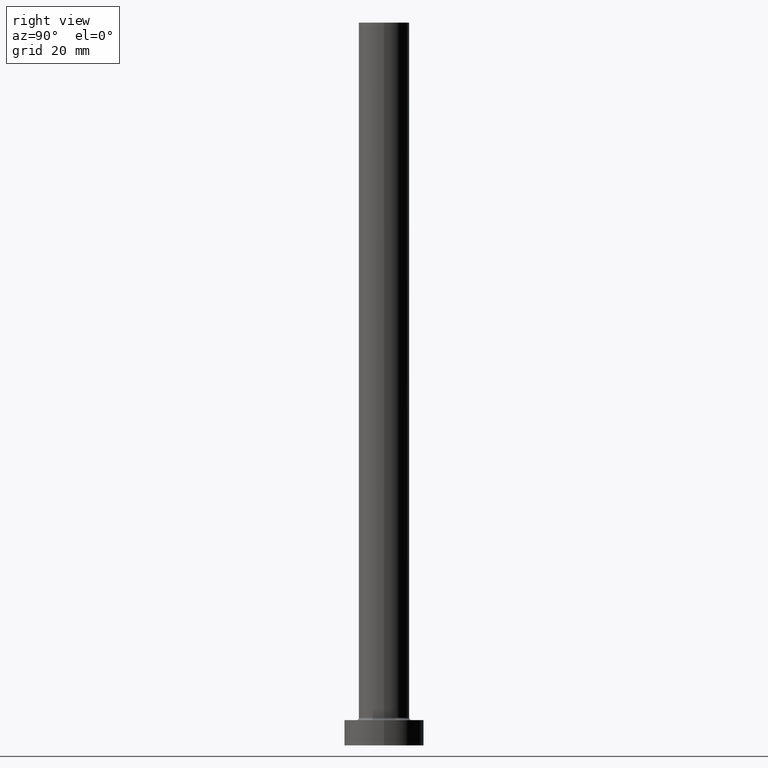
[diagram: clean part render]
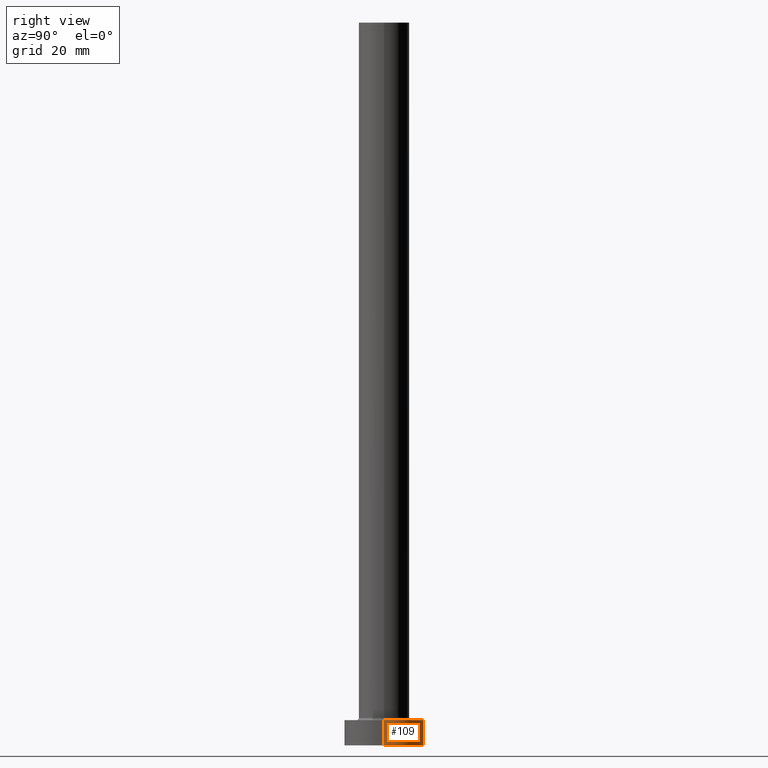
[diagram: same view with one face highlighted and labeled with its STEP entity id]
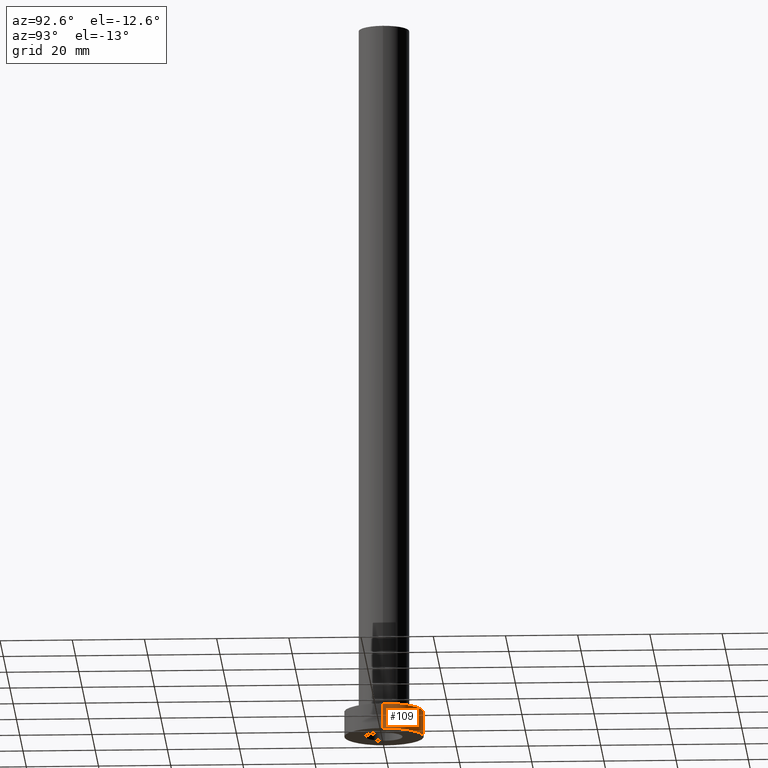
[diagram: same view with one face highlighted and labeled with its STEP entity id]
A machine part, right view. The second image highlights one B-rep face of the part: STEP entity #109.
A second angle (auxiliary view) of the same face is appended — the face is thin or edge-on in the first view.
In plain terms, the highlighted cylindrical surface (partial cylindrical patch) has radius 11 mm, axis along (-0, -0, -1).
Its self-contained STEP definition (entity closure, byte-faithful):
#8 = AXIS2_PLACEMENT_3D ( 'NONE', #14, #260, #446 ) ;
#14 = CARTESIAN_POINT ( 'NONE',  ( 0.000000000000000000, 0.000000000000000000, 7.000000000000000000 ) ) ;
#18 = VERTEX_POINT ( 'NONE', #232 ) ;
#33 = ORIENTED_EDGE ( 'NONE', *, *, #261, .T. ) ;
#35 = EDGE_CURVE ( 'NONE', #106, #18, #225, .T. ) ;
#46 = FACE_OUTER_BOUND ( 'NONE', #324, .T. ) ;
#47 = ORIENTED_EDGE ( 'NONE', *, *, #94, .F. ) ;
#64 = AXIS2_PLACEMENT_3D ( 'NONE', #102, #267, #152 ) ;
#73 = ORIENTED_EDGE ( 'NONE', *, *, #35, .F. ) ;
#85 = CYLINDRICAL_SURFACE ( 'NONE', #111, 11.00000000000000000 ) ;
#91 = DIRECTION ( 'NONE',  ( -0.000000000000000000, -0.000000000000000000, -1.000000000000000000 ) ) ;
#94 = EDGE_CURVE ( 'NONE', #126, #106, #414, .T. ) ;
#102 = CARTESIAN_POINT ( 'NONE',  ( 0.000000000000000000, 0.000000000000000000, 0.000000000000000000 ) ) ;
#106 = VERTEX_POINT ( 'NONE', #271 ) ;
#109 = ADVANCED_FACE ( 'NONE', ( #46 ), #85, .T. ) ;
#111 = AXIS2_PLACEMENT_3D ( 'NONE', #186, #371, #229 ) ;
#126 = VERTEX_POINT ( 'NONE', #410 ) ;
#135 = VERTEX_POINT ( 'NONE', #455 ) ;
#137 = EDGE_CURVE ( 'NONE', #126, #135, #160, .T. ) ;
#145 = CIRCLE ( 'NONE', #64, 11.00000000000000000 ) ;
#152 = DIRECTION ( 'NONE',  ( 1.000000000000000000, 0.000000000000000000, 0.000000000000000000 ) ) ;
#157 = ORIENTED_EDGE ( 'NONE', *, *, #137, .T. ) ;
#160 = LINE ( 'NONE', #279, #200 ) ;
#186 = CARTESIAN_POINT ( 'NONE',  ( 0.000000000000000000, 0.000000000000000000, 7.000000000000000000 ) ) ;
#200 = VECTOR ( 'NONE', #91, 1000.000000000000000 ) ;
#225 = LINE ( 'NONE', #295, #421 ) ;
#229 = DIRECTION ( 'NONE',  ( -1.000000000000000000, 0.000000000000000000, 0.000000000000000000 ) ) ;
#232 = CARTESIAN_POINT ( 'NONE',  ( -11.00000000000000000, 0.000000000000000000, 0.000000000000000000 ) ) ;
#260 = DIRECTION ( 'NONE',  ( 0.000000000000000000, 0.000000000000000000, 1.000000000000000000 ) ) ;
#261 = EDGE_CURVE ( 'NONE', #135, #18, #145, .T. ) ;
#267 = DIRECTION ( 'NONE',  ( 0.000000000000000000, 0.000000000000000000, 1.000000000000000000 ) ) ;
#271 = CARTESIAN_POINT ( 'NONE',  ( -11.00000000000000000, 0.000000000000000000, 7.000000000000000000 ) ) ;
#279 = CARTESIAN_POINT ( 'NONE',  ( 11.00000000000000000, 1.347111479062088405E-15, 7.000000000000000000 ) ) ;
#295 = CARTESIAN_POINT ( 'NONE',  ( -11.00000000000000000, 0.000000000000000000, 7.000000000000000000 ) ) ;
#324 = EDGE_LOOP ( 'NONE', ( #47, #157, #33, #73 ) ) ;
#367 = DIRECTION ( 'NONE',  ( -0.000000000000000000, -0.000000000000000000, -1.000000000000000000 ) ) ;
#371 = DIRECTION ( 'NONE',  ( -0.000000000000000000, -0.000000000000000000, -1.000000000000000000 ) ) ;
#410 = CARTESIAN_POINT ( 'NONE',  ( 11.00000000000000000, 1.347111479062088405E-15, 7.000000000000000000 ) ) ;
#414 = CIRCLE ( 'NONE', #8, 11.00000000000000000 ) ;
#421 = VECTOR ( 'NONE', #367, 1000.000000000000000 ) ;
#446 = DIRECTION ( 'NONE',  ( 1.000000000000000000, 0.000000000000000000, 0.000000000000000000 ) ) ;
#455 = CARTESIAN_POINT ( 'NONE',  ( 11.00000000000000000, 1.347111479062088405E-15, 0.000000000000000000 ) ) ;